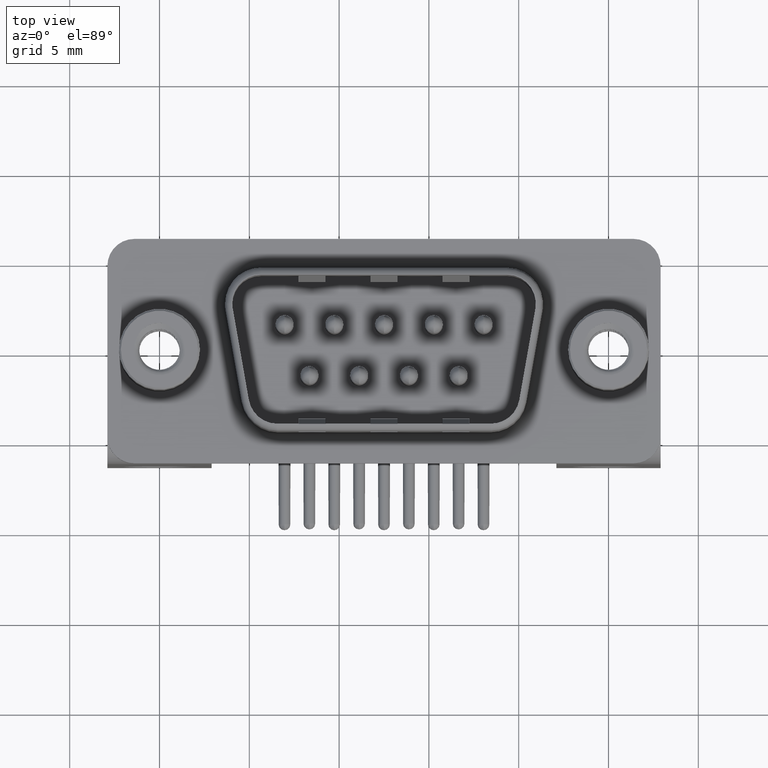
[diagram: clean part render]
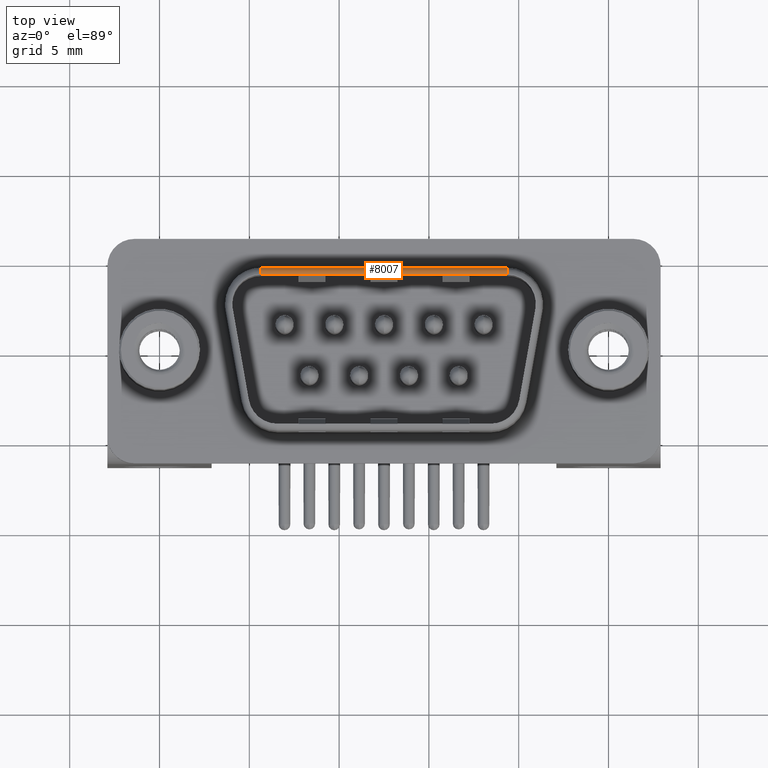
[diagram: same view with one face highlighted and labeled with its STEP entity id]
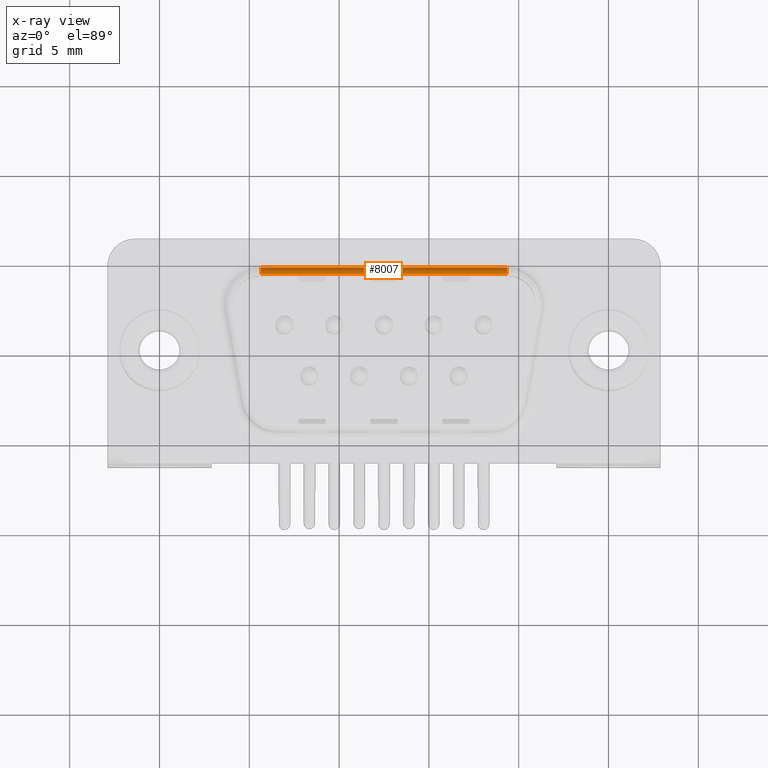
[diagram: x-ray of the same camera — body ghosted, the highlighted face saturated]
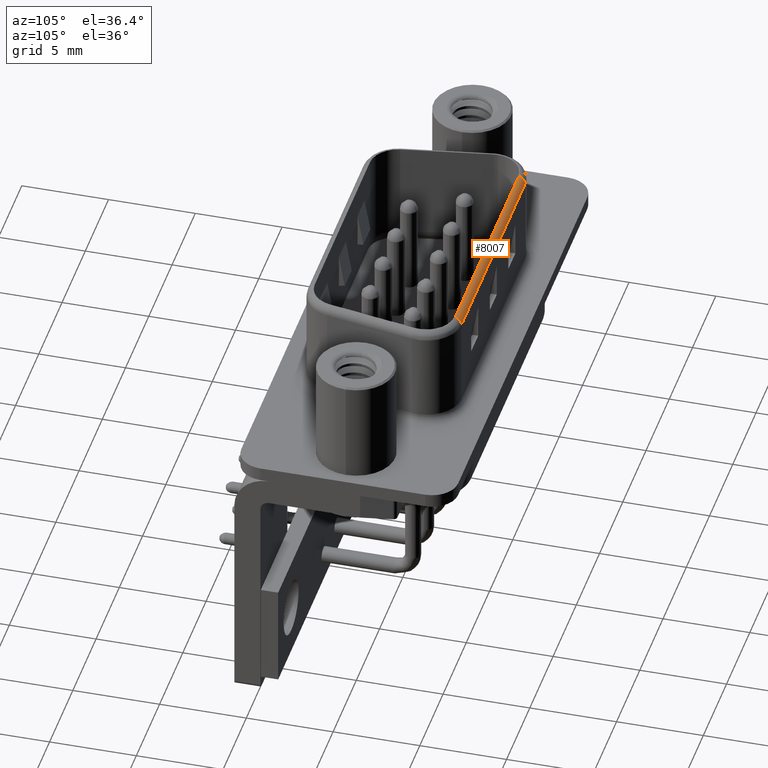
[diagram: same view with one face highlighted and labeled with its STEP entity id]
A machine part, top view. The second image highlights one B-rep face of the part: STEP entity #8007.
The next image is the same camera in x-ray: the body ghosted, the highlighted face saturated — about 0% of this face is hidden behind the body in this view.
A second angle (auxiliary view) of the same face is appended — the face is thin or edge-on in the first view.
In plain terms, the highlighted cylindrical surface (edge-blend (fillet) strip) has radius 0.5 mm, axis along (-1, 0, 0).
Its self-contained STEP definition (entity closure, byte-faithful):
#1042 = ORIENTED_EDGE ( 'NONE', *, *, #12960, .T. ) ;
#1553 = LINE ( 'NONE', #8089, #11809 ) ;
#1876 = ORIENTED_EDGE ( 'NONE', *, *, #11191, .T. ) ;
#2420 = DIRECTION ( 'NONE',  ( 0.0000000000000000000, 0.0000000000000000000, 1.000000000000000000 ) ) ;
#3294 = EDGE_LOOP ( 'NONE', ( #20994, #1042, #8640, #1876 ) ) ;
#3950 = CARTESIAN_POINT ( 'NONE',  ( 19.34999999999999800, 4.190000000000004800, 6.500000000000000900 ) ) ;
#5919 = CIRCLE ( 'NONE', #15779, 0.5000000000000004400 ) ;
#5985 = VERTEX_POINT ( 'NONE', #3950 ) ;
#6368 = DIRECTION ( 'NONE',  ( 1.000000000000000000, 0.0000000000000000000, 0.0000000000000000000 ) ) ;
#6780 = VECTOR ( 'NONE', #15876, 1000.000000000000000 ) ;
#7598 = CARTESIAN_POINT ( 'NONE',  ( 18.45073239838686200, 4.049999999999999800, 6.020000000000001400 ) ) ;
#7746 = DIRECTION ( 'NONE',  ( -1.000000000000000000, 0.0000000000000000000, 0.0000000000000000000 ) ) ;
#7775 = AXIS2_PLACEMENT_3D ( 'NONE', #7598, #21381, #2420 ) ;
#8007 = ADVANCED_FACE ( 'NONE', ( #9399 ), #8838, .T. ) ;
#8089 = CARTESIAN_POINT ( 'NONE',  ( 5.650000000000014600, 4.549999999999998900, 6.020000000000001400 ) ) ;
#8640 = ORIENTED_EDGE ( 'NONE', *, *, #9451, .F. ) ;
#8838 = CYLINDRICAL_SURFACE ( 'NONE', #7775, 0.5000000000000004400 ) ;
#9399 = FACE_OUTER_BOUND ( 'NONE', #3294, .T. ) ;
#9451 = EDGE_CURVE ( 'NONE', #20242, #14673, #1553, .T. ) ;
#10672 = CARTESIAN_POINT ( 'NONE',  ( 18.45073239838686200, 4.190000000000004800, 6.500000000000000000 ) ) ;
#11191 = EDGE_CURVE ( 'NONE', #20242, #22215, #12015, .T. ) ;
#11384 = LINE ( 'NONE', #10672, #6780 ) ;
#11809 = VECTOR ( 'NONE', #16699, 1000.000000000000000 ) ;
#12015 = CIRCLE ( 'NONE', #21144, 0.5000000000000004400 ) ;
#12960 = EDGE_CURVE ( 'NONE', #5985, #14673, #5919, .T. ) ;
#13994 = CARTESIAN_POINT ( 'NONE',  ( 5.650000000000014600, 4.549999999999998900, 6.020000000000001400 ) ) ;
#14673 = VERTEX_POINT ( 'NONE', #20932 ) ;
#15779 = AXIS2_PLACEMENT_3D ( 'NONE', #18086, #7746, #19848 ) ;
#15876 = DIRECTION ( 'NONE',  ( -1.000000000000000000, 0.0000000000000000000, 0.0000000000000000000 ) ) ;
#16695 = CARTESIAN_POINT ( 'NONE',  ( 5.650000000000014600, 4.049999999999999800, 6.020000000000001400 ) ) ;
#16699 = DIRECTION ( 'NONE',  ( 1.000000000000000000, -0.0000000000000000000, -0.0000000000000000000 ) ) ;
#18086 = CARTESIAN_POINT ( 'NONE',  ( 19.34999999999999800, 4.050000000000001600, 6.020000000000001400 ) ) ;
#18433 = DIRECTION ( 'NONE',  ( 0.0000000000000000000, 0.0000000000000000000, -1.000000000000000000 ) ) ;
#19335 = EDGE_CURVE ( 'NONE', #5985, #22215, #11384, .T. ) ;
#19848 = DIRECTION ( 'NONE',  ( 0.0000000000000000000, 0.0000000000000000000, 1.000000000000000000 ) ) ;
#20242 = VERTEX_POINT ( 'NONE', #13994 ) ;
#20932 = CARTESIAN_POINT ( 'NONE',  ( 19.34999999999999800, 4.550000000000001600, 6.020000000000001400 ) ) ;
#20994 = ORIENTED_EDGE ( 'NONE', *, *, #19335, .F. ) ;
#21144 = AXIS2_PLACEMENT_3D ( 'NONE', #16695, #6368, #18433 ) ;
#21381 = DIRECTION ( 'NONE',  ( -1.000000000000000000, 0.0000000000000000000, 0.0000000000000000000 ) ) ;
#21395 = CARTESIAN_POINT ( 'NONE',  ( 5.650000000000014600, 4.190000000000004800, 6.500000000000000000 ) ) ;
#22215 = VERTEX_POINT ( 'NONE', #21395 ) ;